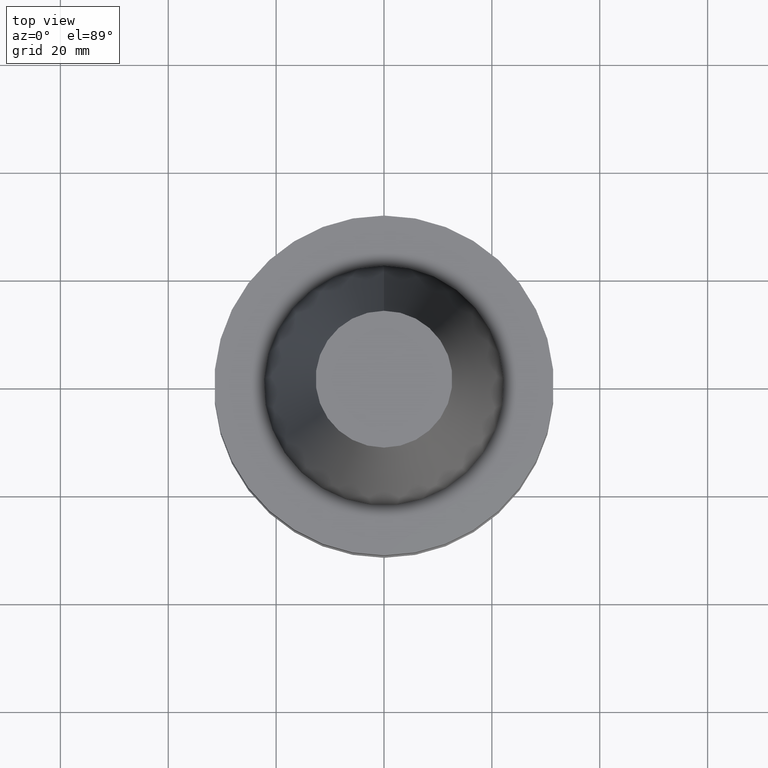
[diagram: clean part render]
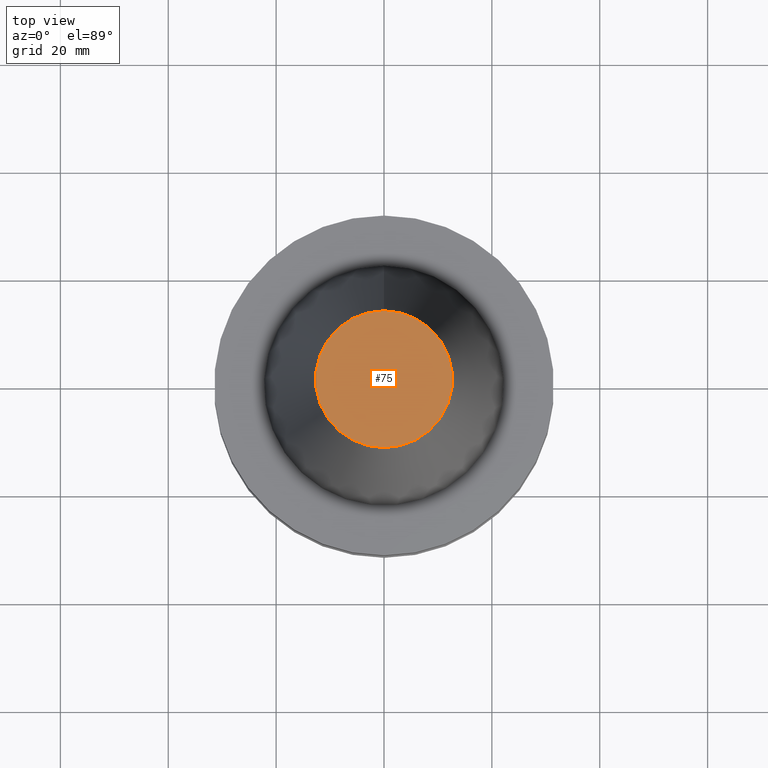
[diagram: same view with one face highlighted and labeled with its STEP entity id]
A machine part, top view. The second image highlights one B-rep face of the part: STEP entity #75.
In plain terms, the highlighted planar face has unit normal (-0, -0, 1).
Its self-contained STEP definition (entity closure, byte-faithful):
#75=ADVANCED_FACE('',(#89),#90,.T.);
#89=FACE_OUTER_BOUND('',#126,.T.);
#90=PLANE('',#127);
#126=EDGE_LOOP('',(#163));
#127=AXIS2_PLACEMENT_3D('',#164,#165,#166);
#163=ORIENTED_EDGE('',*,*,#226,.F.);
#164=CARTESIAN_POINT('',(-4.00459503321185E-015,6.34375000265984,65.4));
#165=DIRECTION('',(-6.12323399573677E-017,-1.22464679914735E-016,1.0));
#166=DIRECTION('',(1.23259516440783E-032,-1.0,-1.22464679914735E-016));
#226=EDGE_CURVE('',#238,#238,#239,.T.);
#238=VERTEX_POINT('',#262);
#239=CIRCLE('',#263,12.6875000053197);
#262=CARTESIAN_POINT('',(-4.00459503321185E-015,12.6875000053197,65.4));
#263=AXIS2_PLACEMENT_3D('',#286,#287,#288);
#286=CARTESIAN_POINT('',(-4.00459503321185E-015,-8.00919006642369E-015,65.4));
#287=DIRECTION('',(6.12323399573677E-017,1.22464679914735E-016,-1.0));
#288=DIRECTION('',(-1.23259516440783E-032,1.0,1.22464679914735E-016));